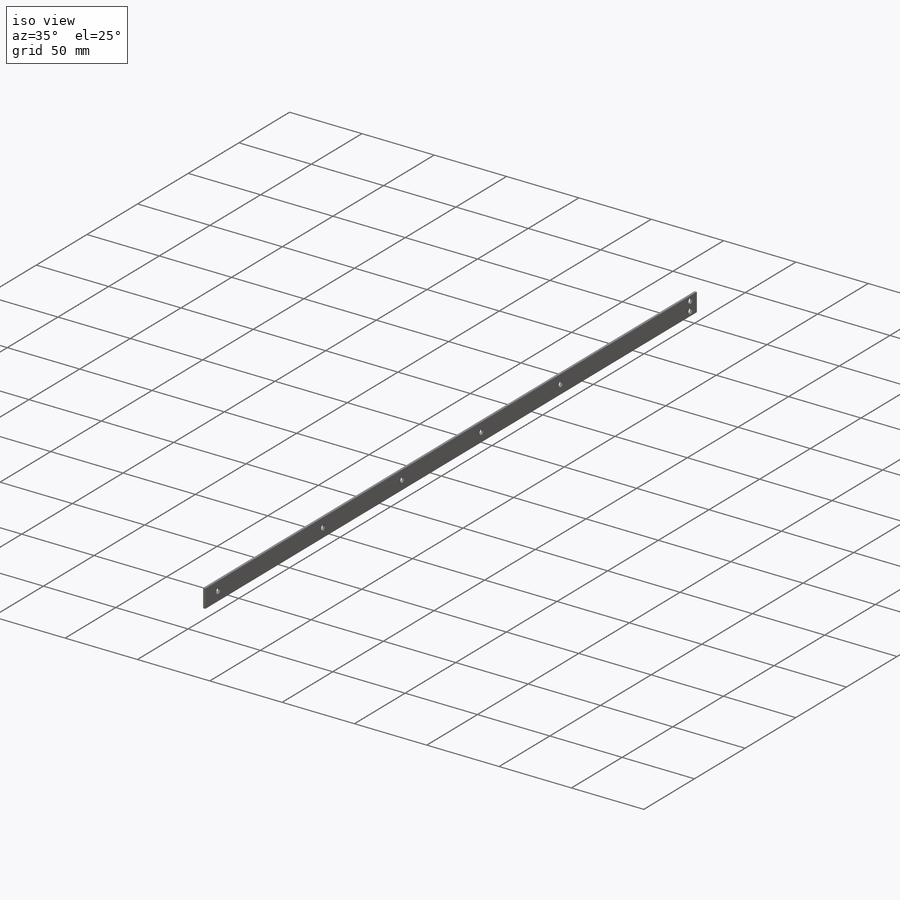
[diagram: iso view]
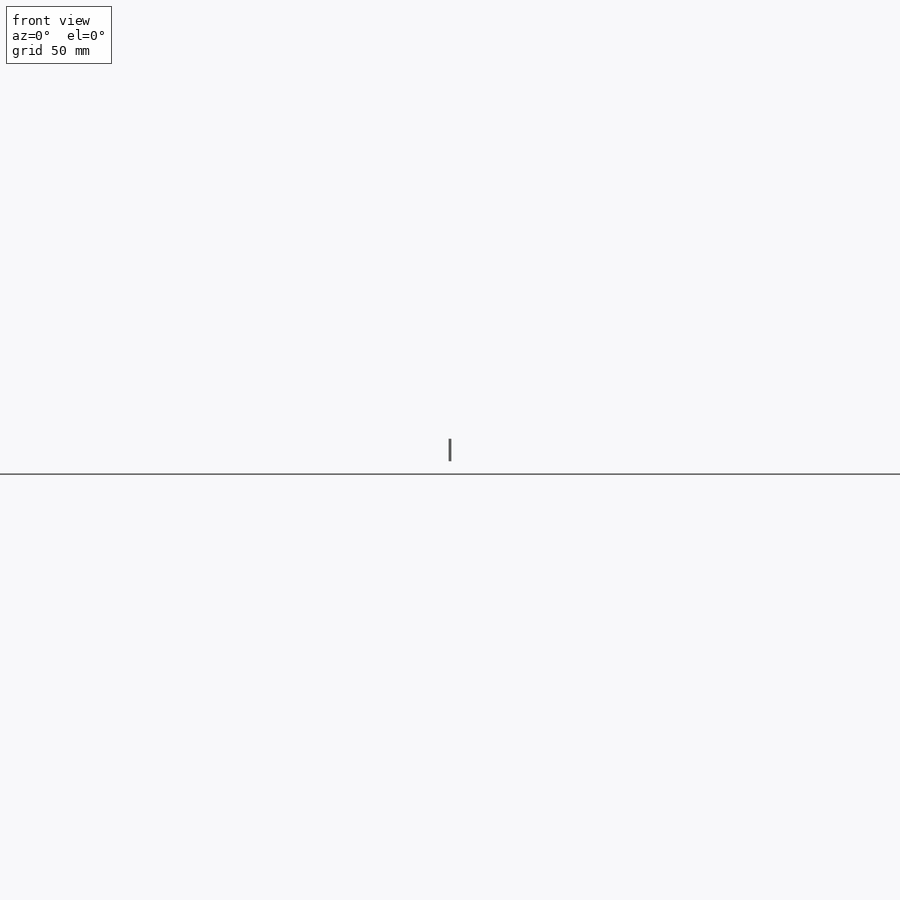
[diagram: front view]
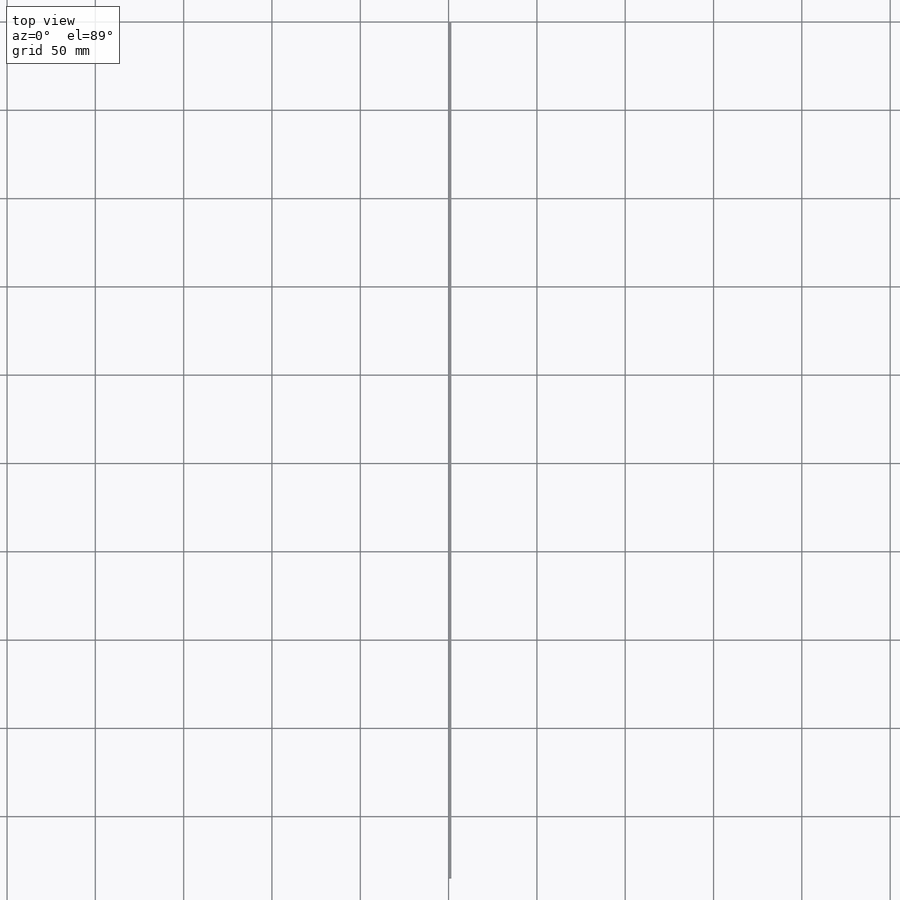
[diagram: top view]
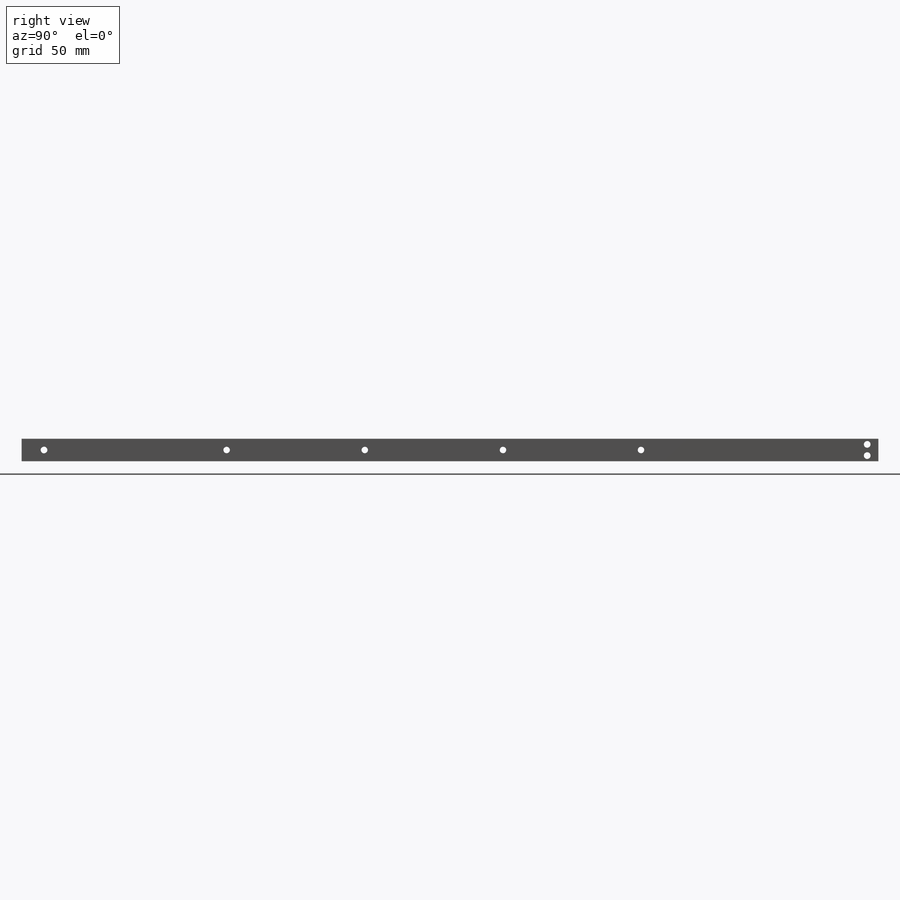
[diagram: right view]
SOLIDWORKS PART (.sldprt)
format: sldprt  version: not decoded by parser v0  size: 207,872 bytes
history: native  units: mm
features: sketch x7, hole x3, material x1, extrude x1 (+13 scaffold rows collapsed)
feature tree (25):
  scaffold x13  (default folders/planes/origin — collapsed)
  material  "Material <not specified>"
  sketch  "Sketch1"  dims[D1=1.5875mm D2=12.7mm]
  extrude  "Boss-Extrude1"  Depth=485.14mm
  hole  "#6 Clearance Hole2"  Diameter=3.7973mm Depth=1.5875mm
  sketch  "Sketch3"  dims[D1=6.35mm D2=6.35mm D3=3.175mm D4=3.175mm]
  sketch  "Sketch2"  dims[hole-wizard template sketch: 60 standard entries collapsed; hole parameters kept: c18.Thru Hole Depth=1.5875mm]
  hole  "#6 Clearance Hole1"  Diameter=3.7973mm Depth=1.5875mm
  sketch  "Sketch5"  dims[D1=12.7mm D2=6.35mm]
  sketch  "Sketch4"  dims[hole-wizard template sketch: 60 standard entries collapsed; hole parameters kept: c18.Thru Hole Depth=1.5875mm]
  hole  "#6 Clearance Hole3"  Diameter=3.6576mm Depth=1.5875mm
  sketch  "Sketch6"
  sketch  "Sketch7"  dims[Thru Hole Dia.=3.6576mm Thru Hole Depth=1.5875mm]
decode coverage: 10 of 11 modeling features carry decoded parameters
note: ~ marks probable driven/reference dimensions
note: suppression state not decoded; provenance and decode notes live in map.json
